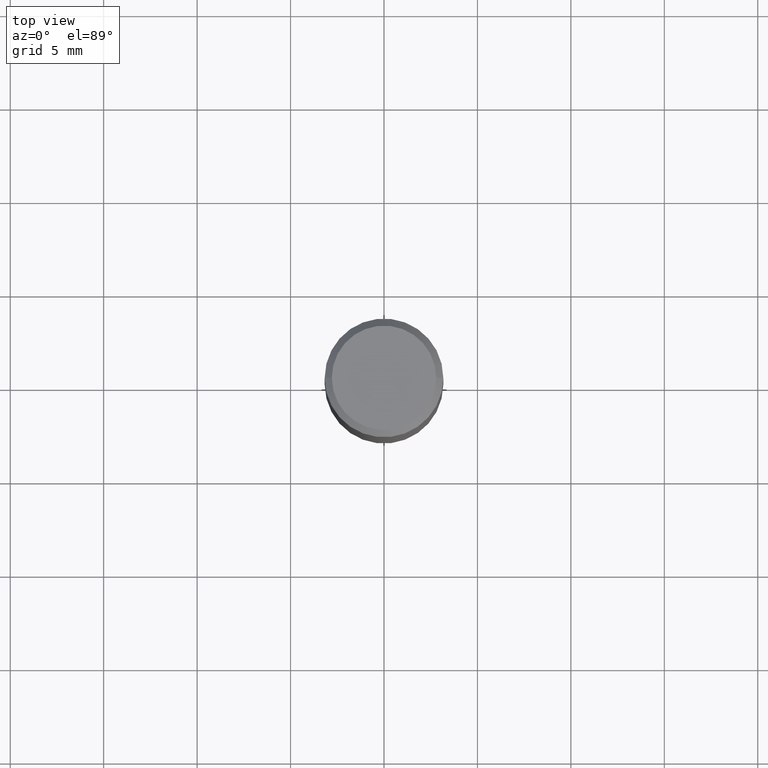
[diagram: clean part render]
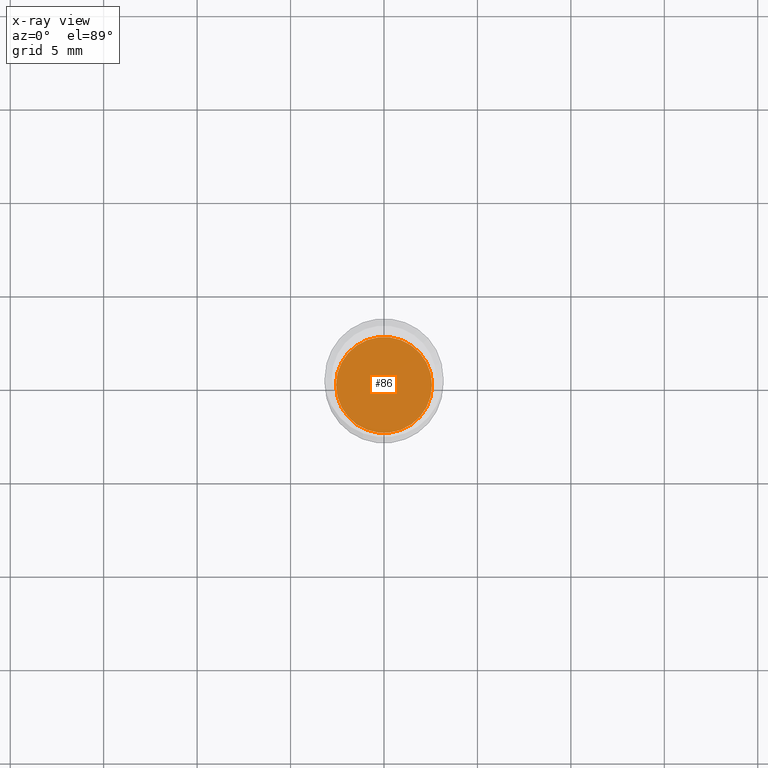
[diagram: x-ray — body ghosted, one internal face saturated and labeled with its STEP entity id]
A machine part, top view, then the same camera in x-ray: the body is ghosted and one INTERNAL B-rep face — a face not visible from any outside direction — is saturated and labeled: STEP entity #86.
In plain terms, the highlighted planar face has unit normal (-0, 0, 1).
Its self-contained STEP definition (entity closure, byte-faithful):
#36 = VERTEX_POINT ( 'NONE', #133 ) ;
#48 = DIRECTION ( 'NONE',  ( -2.445468806185136597E-29, 3.491481338843145583E-15, 1.000000000000000000 ) ) ;
#58 = AXIS2_PLACEMENT_3D ( 'NONE', #196, #228, #157 ) ;
#86 = ADVANCED_FACE ( 'NONE', ( #267 ), #258, .F. ) ;
#101 = CARTESIAN_POINT ( 'NONE',  ( 2.139785205411994522E-29, -3.055046171487752730E-15, -0.8750000000000001110 ) ) ;
#133 = CARTESIAN_POINT ( 'NONE',  ( 0.1010500000000000009, -3.760674550067950505E-15, -0.8750000000000001110 ) ) ;
#157 = DIRECTION ( 'NONE',  ( 1.000000000000000000, -6.982962677686265922E-15, 4.876176775795935793E-29 ) ) ;
#161 = AXIS2_PLACEMENT_3D ( 'NONE', #101, #328, #243 ) ;
#196 = CARTESIAN_POINT ( 'NONE',  ( 2.139785205411994522E-29, -3.055046171487752730E-15, -0.8750000000000001110 ) ) ;
#212 = CIRCLE ( 'NONE', #161, 0.1010500000000000009 ) ;
#228 = DIRECTION ( 'NONE',  ( -2.438088387897960049E-29, 3.491481338843145188E-15, 1.000000000000000000 ) ) ;
#242 = EDGE_CURVE ( 'NONE', #36, #374, #212, .T. ) ;
#243 = DIRECTION ( 'NONE',  ( 1.000000000000000000, -6.982962677686269077E-15, 0.000000000000000000 ) ) ;
#258 = PLANE ( 'NONE',  #58 ) ;
#267 = FACE_OUTER_BOUND ( 'NONE', #403, .T. ) ;
#287 = CIRCLE ( 'NONE', #346, 0.1010500000000000009 ) ;
#298 = DIRECTION ( 'NONE',  ( 1.000000000000000000, -6.982962677686269077E-15, 0.000000000000000000 ) ) ;
#328 = DIRECTION ( 'NONE',  ( -2.445468806185136597E-29, 3.491481338843145583E-15, 1.000000000000000000 ) ) ;
#341 = ORIENTED_EDGE ( 'NONE', *, *, #242, .F. ) ;
#346 = AXIS2_PLACEMENT_3D ( 'NONE', #376, #48, #298 ) ;
#366 = ORIENTED_EDGE ( 'NONE', *, *, #414, .F. ) ;
#374 = VERTEX_POINT ( 'NONE', #396 ) ;
#376 = CARTESIAN_POINT ( 'NONE',  ( 2.139785205411994522E-29, -3.055046171487752730E-15, -0.8750000000000001110 ) ) ;
#396 = CARTESIAN_POINT ( 'NONE',  ( -0.1010500000000000009, -2.334393509828060482E-15, -0.8750000000000001110 ) ) ;
#403 = EDGE_LOOP ( 'NONE', ( #341, #366 ) ) ;
#414 = EDGE_CURVE ( 'NONE', #374, #36, #287, .T. ) ;